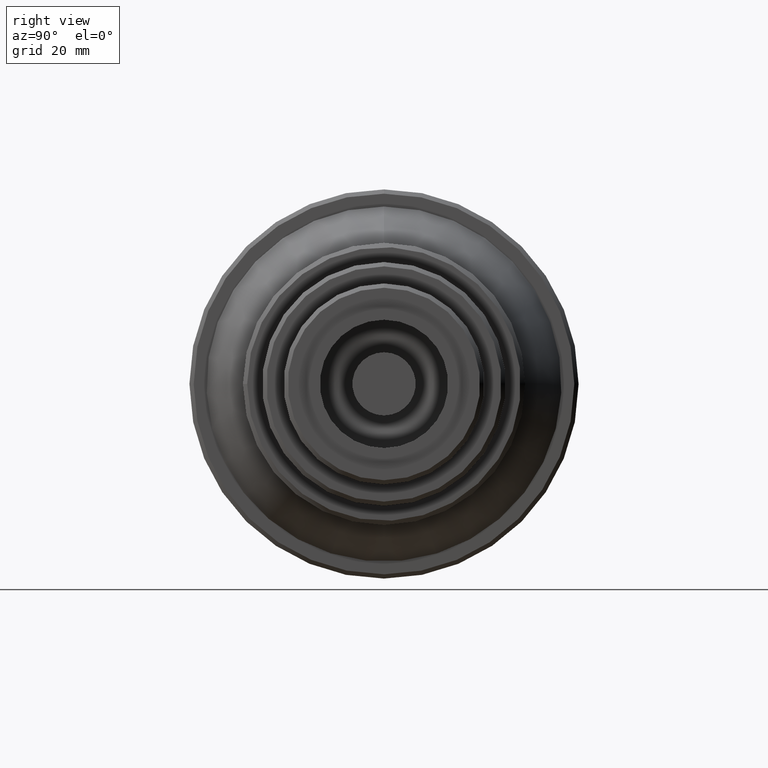
[diagram: clean part render]
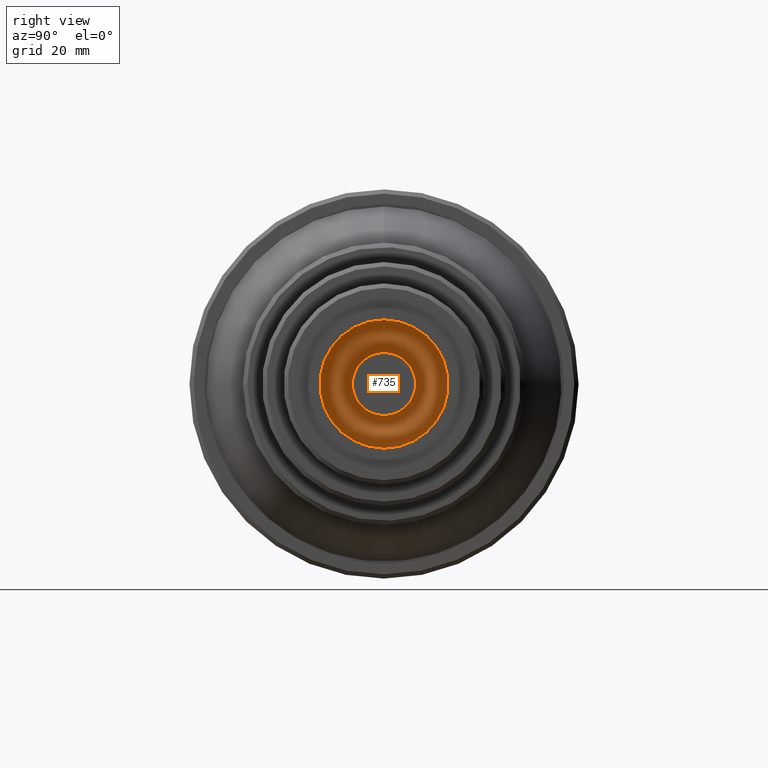
[diagram: same view with one face highlighted and labeled with its STEP entity id]
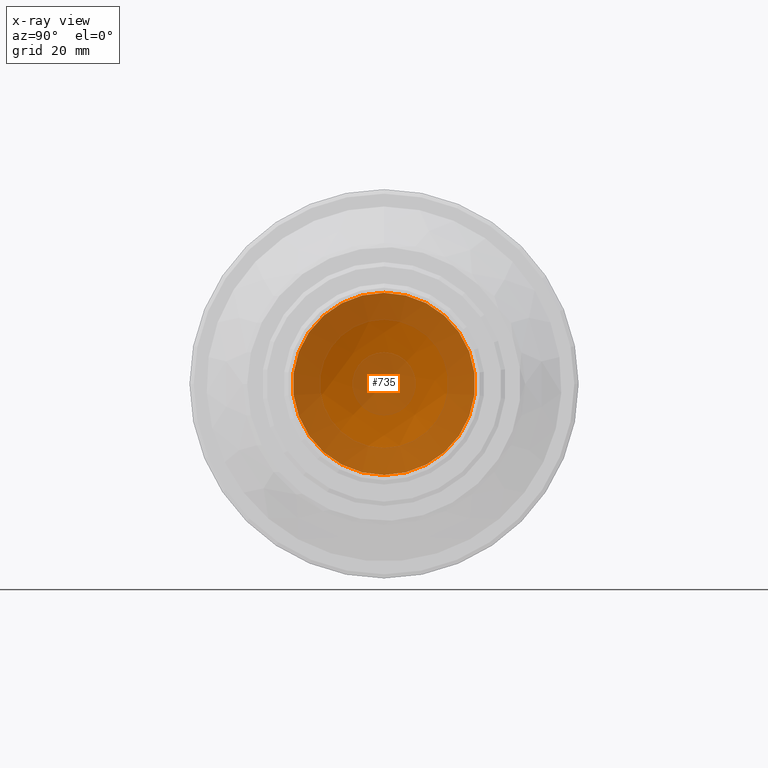
[diagram: x-ray of the same camera — body ghosted, the highlighted face saturated]
A machine part, right view. The second image highlights one B-rep face of the part: STEP entity #735.
The next image is the same camera in x-ray: the body ghosted, the highlighted face saturated — about 62% of this face is hidden behind the body in this view.
In plain terms, the highlighted face is a freeform B-spline surface patch.
Its self-contained STEP definition (entity closure, byte-faithful):
#30 = CARTESIAN_POINT ( 'NONE',  ( 69.36981069471742956, -21.62215187712780207, -7.143884906403351387 ) ) ;
#35 = CARTESIAN_POINT ( 'NONE',  ( 69.33794784967651026, 7.507822388636141042, 21.89916491050351155 ) ) ;
#133 = CARTESIAN_POINT ( 'NONE',  ( 73.64955650230153594, -21.62215187712780207, 20.52876435087253881 ) ) ;
#164 = CARTESIAN_POINT ( 'NONE',  ( 64.75949163304437661, 7.507822388636140154, 7.494244173597468972 ) ) ;
#174 = FACE_OUTER_BOUND ( 'NONE', #675, .T. ) ;
#222 = CARTESIAN_POINT ( 'NONE',  ( 69.37576424659823715, 7.507822388636141042, -22.01779041749333743 ) ) ;
#294 = CARTESIAN_POINT ( 'NONE',  ( 69.36615703619267492, -7.410052649604725872, -22.02086219747615914 ) ) ;
#297 = DIRECTION ( 'NONE',  ( 0.000000000000000000, 0.000000000000000000, 1.000000000000000000 ) ) ;
#307 = CARTESIAN_POINT ( 'NONE',  ( 70.36366899999995894, 0.000000000000000000, 21.30000092681467905 ) ) ;
#370 = CARTESIAN_POINT ( 'NONE',  ( 69.39958493846634724, 21.71377720180500148, -7.140796341634624511 ) ) ;
#425 = CARTESIAN_POINT ( 'NONE',  ( 70.36366899999995894, 0.000000000000000000, 0.000000000000000000 ) ) ;
#444 = VERTEX_POINT ( 'NONE', #307 ) ;
#453 = ORIENTED_EDGE ( 'NONE', *, *, #563, .T. ) ;
#461 = AXIS2_PLACEMENT_3D ( 'NONE', #425, #679, #297 ) ;
#472 =( BOUNDED_SURFACE ( )  B_SPLINE_SURFACE ( 3, 3, ( 
 ( #700, #370, #568, #559 ),
 ( #222, #627, #164, #35 ),
 ( #294, #677, #490, #737 ),
 ( #613, #30, #547, #133 ) ),
 .UNSPECIFIED., .F., .F., .F. ) 
 B_SPLINE_SURFACE_WITH_KNOTS ( ( 4, 4 ),
 ( 4, 4 ),
 ( 0.000000000000000000, 1.000000000000000000 ),
 ( 0.000000000000000000, 1.000000000000000000 ),
 .UNSPECIFIED. ) 
 GEOMETRIC_REPRESENTATION_ITEM ( )  RATIONAL_B_SPLINE_SURFACE ( (
 ( 1.000000000000000000, 0.9685058298796920262, 0.9685058298796920262, 1.000000000000000000),
 ( 0.9683222078176765280, 0.9378257034733944453, 0.9378257034733944453, 0.9683222078176765280),
 ( 0.9683222078176765280, 0.9378257034733944453, 0.9378257034733944453, 0.9683222078176765280),
 ( 1.000000000000000000, 0.9685058298796920262, 0.9685058298796920262, 1.000000000000000000) ) ) 
 REPRESENTATION_ITEM ( '' )  SURFACE ( )  );
#490 = CARTESIAN_POINT ( 'NONE',  ( 64.74924039008419641, -7.410052649604724984, 7.495289722165347612 ) ) ;
#547 = CARTESIAN_POINT ( 'NONE',  ( 69.35760979355067946, -21.62215187712780207, 7.025271203555893962 ) ) ;
#559 = CARTESIAN_POINT ( 'NONE',  ( 73.67748045418635172, 21.71377720180500148, 20.51988900935312898 ) ) ;
#563 = EDGE_CURVE ( 'NONE', #444, #444, #840, .T. ) ;
#568 = CARTESIAN_POINT ( 'NONE',  ( 69.38738931219890560, 21.71377720180500148, 7.022233919863004381 ) ) ;
#613 = CARTESIAN_POINT ( 'NONE',  ( 73.68500643403083927, -21.62215187712780207, -20.63996654004043307 ) ) ;
#627 = CARTESIAN_POINT ( 'NONE',  ( 64.77250700708933095, 7.507822388636140154, -7.620775950907857421 ) ) ;
#675 = EDGE_LOOP ( 'NONE', ( #453 ) ) ;
#677 = CARTESIAN_POINT ( 'NONE',  ( 64.76225757995010213, -7.410052649604724984, -7.621839152372476001 ) ) ;
#679 = DIRECTION ( 'NONE',  ( 1.000000000000000000, 0.000000000000000000, 0.000000000000000000 ) ) ;
#700 = CARTESIAN_POINT ( 'NONE',  ( 73.71291505960347479, 21.71377720180500148, -20.63104312171574151 ) ) ;
#735 = ADVANCED_FACE ( 'NONE', ( #174 ), #472, .F. ) ;
#737 = CARTESIAN_POINT ( 'NONE',  ( 69.32833536337133751, -7.410052649604725872, 21.90222014062138811 ) ) ;
#840 = CIRCLE ( 'NONE', #461, 21.30000092681467905 ) ;